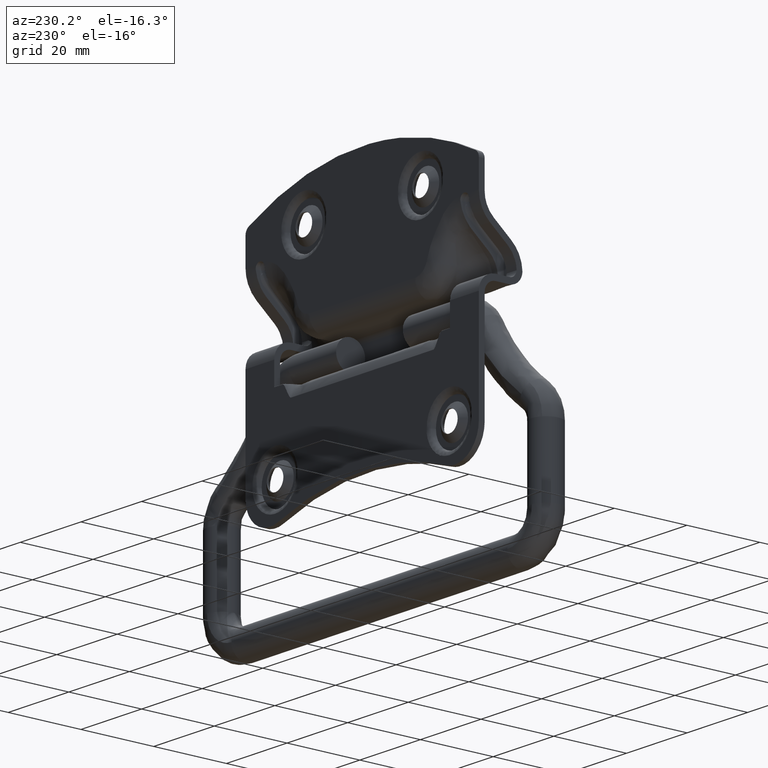
[diagram: clean part render]
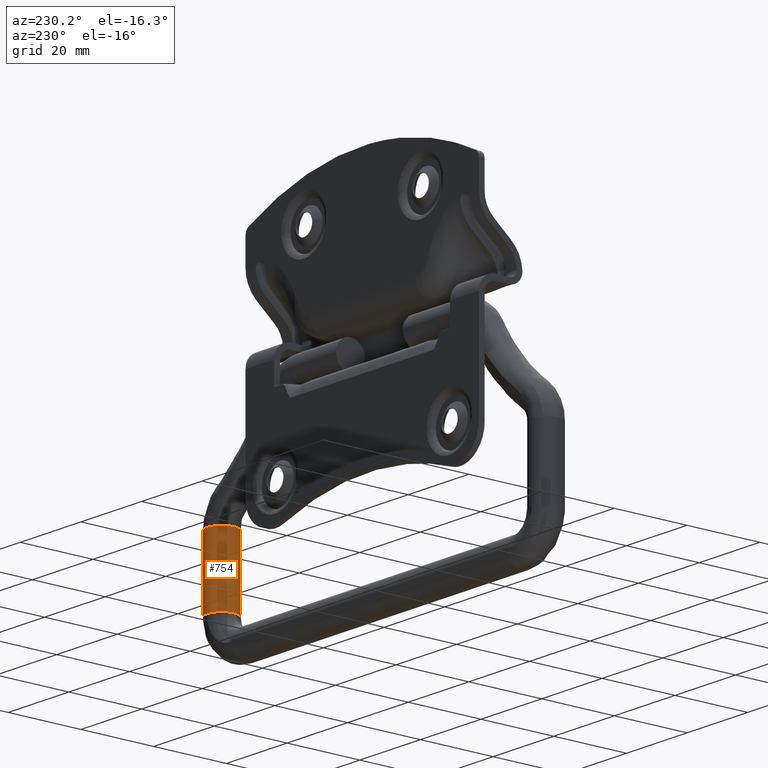
[diagram: same view with one face highlighted and labeled with its STEP entity id]
A machine part, auxiliary view. The second image highlights one B-rep face of the part: STEP entity #754.
In plain terms, the highlighted face is a freeform B-spline surface patch.
Its self-contained STEP definition (entity closure, byte-faithful):
#648=CARTESIAN_POINT('',(50.746781697224982,-2.901497484049150,-28.562134356293139));
#649=CARTESIAN_POINT('',(47.845284213175830,-0.148079181274134,-28.562134356293132));
#650=CARTESIAN_POINT('',(50.598702515950848,2.753418302775015,-28.562134356293139));
#651=CARTESIAN_POINT('',(53.352120818725865,5.654915786824165,-28.562134356293132));
#652=CARTESIAN_POINT('',(56.253618302775017,2.901497484049150,-28.562134356293139));
#653=CARTESIAN_POINT('',(50.746781697224982,-2.901497484049148,-48.485977392397963));
#654=CARTESIAN_POINT('',(47.845284213175830,-0.148079181274133,-48.485977392397956));
#655=CARTESIAN_POINT('',(50.598702515950848,2.753418302775017,-48.485977392397963));
#656=CARTESIAN_POINT('',(53.352120818725865,5.654915786824166,-48.485977392397956));
#657=CARTESIAN_POINT('',(56.253618302775017,2.901497484049151,-48.485977392397963));
#665=(BOUNDED_SURFACE()B_SPLINE_SURFACE(2,1,((#648,#653),(#649,#654),(#650,#655),(#651,#656),(#652,#657)),.UNSPECIFIED.,.F.,.F.,.U.)B_SPLINE_SURFACE_WITH_KNOTS((3,2,3),(2,2),(0.0,6.627416997969519,13.254833995939039),(0.0,19.923843036104820),.UNSPECIFIED.)GEOMETRIC_REPRESENTATION_ITEM()RATIONAL_B_SPLINE_SURFACE(((1.0,1.0),(0.707106781186548,0.707106781186548),(1.0,1.0),(0.707106781186548,0.707106781186548),(1.0,1.0)))REPRESENTATION_ITEM('')SURFACE());
#666=CARTESIAN_POINT('',(50.746781562331961,-2.901497356034053,-48.000029999994439));
#667=VERTEX_POINT('',#666);
#668=CARTESIAN_POINT('',(49.500199999999992,1.161160E-015,-48.000029999999299));
#669=VERTEX_POINT('',#668);
#670=CARTESIAN_POINT('',(50.746781562331961,-2.901497356034053,-48.000029999994439));
#671=CARTESIAN_POINT('',(50.378433662754439,-2.552641433671691,-48.000029999995952));
#672=CARTESIAN_POINT('',(49.918155864061632,-1.908366070741901,-48.000029999997629));
#673=CARTESIAN_POINT('',(49.566155165623726,-0.879172751588170,-48.000029999999093));
#674=CARTESIAN_POINT('',(49.500130981870129,-0.304349579662791,-48.000029999999221));
#675=CARTESIAN_POINT('',(49.500199999999992,1.161160E-015,-48.000029999999299));
#676=B_SPLINE_CURVE_WITH_KNOTS('',3,(#670,#671,#672,#673,#674,#675),.UNSPECIFIED.,.F.,.U.,(4,1,1,4),(0.000000051279842,1.521756962515291,2.333344617045864,3.246399204797912),.UNSPECIFIED.);
#677=EDGE_CURVE('',#667,#669,#676,.T.);
#678=ORIENTED_EDGE('',*,*,#677,.F.);
#679=CARTESIAN_POINT('',(50.746781764976909,-2.901497548343327,-29.036229372947918));
#680=VERTEX_POINT('',#679);
#681=CARTESIAN_POINT('',(50.746781764976909,-2.901497548343327,-29.036229372947918));
#682=CARTESIAN_POINT('',(50.746781562331961,-2.901497356034053,-48.000029999994439));
#683=QUASI_UNIFORM_CURVE('',1,(#681,#682),.UNSPECIFIED.,.F.,.U.);
#684=EDGE_CURVE('',#680,#667,#683,.T.);
#685=ORIENTED_EDGE('',*,*,#684,.F.);
#686=CARTESIAN_POINT('',(49.500199999999992,-4.680010E-029,-29.036229372884751));
#687=VERTEX_POINT('',#686);
#688=CARTESIAN_POINT('',(50.746781764976909,-2.901497548343327,-29.036229372947918));
#689=CARTESIAN_POINT('',(50.476854356075798,-2.645533944120798,-29.036229372961401));
#690=CARTESIAN_POINT('',(50.030577435911141,-2.084293369081921,-29.036229372973661));
#691=CARTESIAN_POINT('',(49.599946156348949,-1.082050420185119,-29.036229372951802));
#692=CARTESIAN_POINT('',(49.500075173351249,-0.371990079342073,-29.036229372911929));
#693=CARTESIAN_POINT('',(49.500199999999992,-4.680010E-029,-29.036229372884751));
#694=B_SPLINE_CURVE_WITH_KNOTS('',3,(#688,#689,#690,#691,#692,#693),.UNSPECIFIED.,.F.,.U.,(4,1,1,4),(0.000000051280816,1.115962298505095,2.130437236969519,3.246399484193993),.UNSPECIFIED.);
#695=EDGE_CURVE('',#680,#687,#694,.T.);
#696=ORIENTED_EDGE('',*,*,#695,.T.);
#697=CARTESIAN_POINT('',(51.149058990530563,3.236067977282163,-29.036229372024358));
#698=VERTEX_POINT('',#697);
#699=CARTESIAN_POINT('',(49.500199999999992,-4.680010E-029,-29.036229372884751));
#700=CARTESIAN_POINT('',(49.500128553958170,0.314165995976809,-29.036229372884801));
#701=CARTESIAN_POINT('',(49.569956251429751,0.903187511315533,-29.036229372848329));
#702=CARTESIAN_POINT('',(49.851978838104287,1.703759935260264,-29.036229372701200));
#703=CARTESIAN_POINT('',(50.336732549458802,2.517073464873359,-29.036229372448201));
#704=CARTESIAN_POINT('',(50.815307935906340,2.993871757779295,-29.036229372198509));
#705=CARTESIAN_POINT('',(51.149058990530563,3.236067977282163,-29.036229372024358));
#706=B_SPLINE_CURVE_WITH_KNOTS('',3,(#699,#700,#701,#702,#703,#704,#705),.UNSPECIFIED.,.F.,.U.,(4,1,1,1,4),(0.000000089078214,0.942486378217468,1.767177648840494,2.532924392482272,3.769945245635611),.UNSPECIFIED.);
#707=EDGE_CURVE('',#687,#698,#706,.T.);
#708=ORIENTED_EDGE('',*,*,#707,.T.);
#709=CARTESIAN_POINT('',(56.253618235023090,2.901497548343321,-29.036229372989119));
#710=VERTEX_POINT('',#709);
#711=CARTESIAN_POINT('',(51.149058990530563,3.236067977282163,-29.036229372024358));
#712=CARTESIAN_POINT('',(51.453016983935917,3.457037825927879,-29.036229372110839));
#713=CARTESIAN_POINT('',(52.175358170458701,3.839834505800818,-29.036229372299371));
#714=CARTESIAN_POINT('',(53.327193505079862,4.054187292962927,-29.036229372551588));
#715=CARTESIAN_POINT('',(54.312522502615558,3.946249798905180,-29.036229372733199));
#716=CARTESIAN_POINT('',(55.304935852099547,3.623178614633521,-29.036229372888911));
#717=CARTESIAN_POINT('',(55.897416926447157,3.240181543024872,-29.036229372960111));
#718=CARTESIAN_POINT('',(56.253618235023090,2.901497548343321,-29.036229372989119));
#719=B_SPLINE_CURVE_WITH_KNOTS('',3,(#711,#712,#713,#714,#715,#716,#717,#718),.UNSPECIFIED.,.F.,.U.,(4,1,1,1,1,4),(0.000000189721955,1.127383957988663,2.428274743436361,3.468878554184480,4.075967107401898,5.550255607178903),.UNSPECIFIED.);
#720=EDGE_CURVE('',#698,#710,#719,.T.);
#721=ORIENTED_EDGE('',*,*,#720,.T.);
#722=CARTESIAN_POINT('',(56.253618437373810,2.901497355718451,-48.000030000406632));
#723=VERTEX_POINT('',#722);
#724=CARTESIAN_POINT('',(56.253618235023090,2.901497548343321,-29.036229372989119));
#725=CARTESIAN_POINT('',(56.253618437373810,2.901497355718451,-48.000030000406632));
#726=QUASI_UNIFORM_CURVE('',1,(#724,#725),.UNSPECIFIED.,.F.,.U.);
#727=EDGE_CURVE('',#710,#723,#726,.T.);
#728=ORIENTED_EDGE('',*,*,#727,.T.);
#729=CARTESIAN_POINT('',(53.600720386190318,3.998736757022166,-48.000030001273437));
#730=VERTEX_POINT('',#729);
#731=CARTESIAN_POINT('',(53.600720386190318,3.998736757022166,-48.000030001273437));
#732=CARTESIAN_POINT('',(54.059428888021472,3.987501277454057,-48.000030001123527));
#733=CARTESIAN_POINT('',(55.033359391689217,3.792342006177182,-48.000030000805431));
#734=CARTESIAN_POINT('',(55.876770242466939,3.259883807922483,-48.000030000529662));
#735=CARTESIAN_POINT('',(56.253618437373810,2.901497355718451,-48.000030000406632));
#736=B_SPLINE_CURVE_WITH_KNOTS('',3,(#731,#732,#733,#734,#735),.UNSPECIFIED.,.F.,.U.,(4,1,4),(0.000000050041914,1.376452744876217,2.936406487122097),.UNSPECIFIED.);
#737=EDGE_CURVE('',#730,#723,#736,.T.);
#738=ORIENTED_EDGE('',*,*,#737,.F.);
#739=CARTESIAN_POINT('',(49.500199999999992,1.161160E-015,-48.000029999999299));
#740=CARTESIAN_POINT('',(49.499732197400348,0.498809891935880,-48.000029999875260));
#741=CARTESIAN_POINT('',(49.645141320871481,1.263171695612301,-48.000029999766099));
#742=CARTESIAN_POINT('',(50.087444213929203,2.125405997478082,-48.000029999796560));
#743=CARTESIAN_POINT('',(50.530363596484918,2.710076240377047,-48.000029999896498));
#744=CARTESIAN_POINT('',(51.069268304249952,3.210036422093581,-48.000030000070019));
#745=CARTESIAN_POINT('',(51.753611613532733,3.628106708407932,-48.000030000344822));
#746=CARTESIAN_POINT('',(52.601452706228073,3.936554964253679,-48.000030000736537));
#747=CARTESIAN_POINT('',(53.235097970668932,4.008060194573162,-48.000030001068907));
#748=CARTESIAN_POINT('',(53.600720386190318,3.998736757022166,-48.000030001273437));
#749=B_SPLINE_CURVE_WITH_KNOTS('',3,(#739,#740,#741,#742,#743,#744,#745,#746,#747,#748),.UNSPECIFIED.,.F.,.U.,(4,1,1,1,1,1,1,4),(0.000000116601021,1.496222490977193,2.294239164590950,2.892721072056580,3.690645389887493,4.488657789894710,5.286672912445703,6.383881635363213),.UNSPECIFIED.);
#750=EDGE_CURVE('',#669,#730,#749,.T.);
#751=ORIENTED_EDGE('',*,*,#750,.F.);
#752=EDGE_LOOP('',(#678,#685,#696,#708,#721,#728,#738,#751));
#753=FACE_OUTER_BOUND('',#752,.T.);
#754=ADVANCED_FACE('',(#753),#665,.T.);